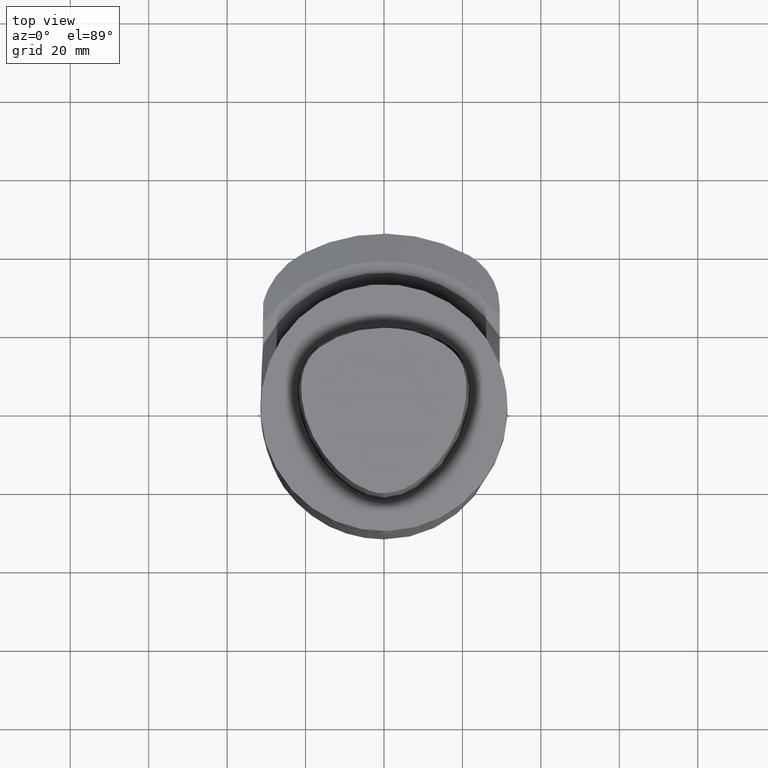
[diagram: clean part render]
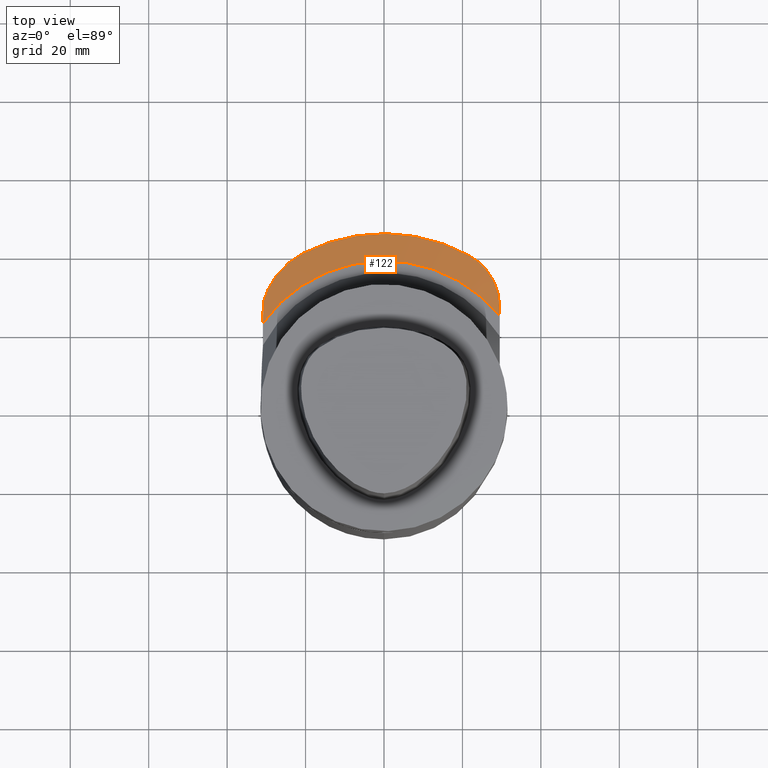
[diagram: same view with one face highlighted and labeled with its STEP entity id]
A machine part, top view. The second image highlights one B-rep face of the part: STEP entity #122.
In plain terms, the highlighted conical surface has half-angle 70 deg.
Its self-contained STEP definition (entity closure, byte-faithful):
#122=ADVANCED_FACE('240[2]',(#341),#342,.T.);
#133=EDGE_CURVE('240[2]',#357,#324,#358,.T.);
#148=EDGE_CURVE('240[2]',#382,#324,#383,.T.);
#175=EDGE_CURVE('240[2]',#357,#424,#425,.T.);
#208=EDGE_CURVE('240[2]',#400,#382,#470,.T.);
#247=EDGE_CURVE('240[2]',#424,#515,#516,.T.);
#249=EDGE_CURVE('240[2]',#515,#400,#518,.T.);
#324=VERTEX_POINT('',#593);
#341=FACE_OUTER_BOUND('',#616,.T.);
#342=CONICAL_SURFACE('',#617,41.5000000000006,1.22173047639604);
#357=VERTEX_POINT('',#678);
#358=CIRCLE('',#679,38.0000000000013);
#382=VERTEX_POINT('',#733);
#383=(B_SPLINE_CURVE(2,(#735,#736,#737),.UNSPECIFIED.,.F.,.F.)B_SPLINE_CURVE_WITH_KNOTS((3,3),(5.34196374309043,11.0515738639116),.UNSPECIFIED.)RATIONAL_B_SPLINE_CURVE((1.00408316679525,1.00422367331628,1.0))BOUNDED_CURVE()REPRESENTATION_ITEM('')GEOMETRIC_REPRESENTATION_ITEM()CURVE());
#400=VERTEX_POINT('',#775);
#424=VERTEX_POINT('',#826);
#425=(B_SPLINE_CURVE(2,(#828,#829,#830),.UNSPECIFIED.,.F.,.F.)B_SPLINE_CURVE_WITH_KNOTS((3,3),(4.13436065267856E-012,2.53867444493249),.UNSPECIFIED.)RATIONAL_B_SPLINE_CURVE((1.0,1.00181066964356,1.00273289031747))BOUNDED_CURVE()REPRESENTATION_ITEM('')GEOMETRIC_REPRESENTATION_ITEM()CURVE());
#470=B_SPLINE_CURVE_WITH_KNOTS('',3,(#896,#897,#898,#899,#900,#901,#902,#903,#904,#905,#906,#907),.UNSPECIFIED.,.F.,.F.,(4,2,2,2,2,4),(26.0613710437939,29.2757826006957,32.4901941575978,35.7046057145,38.9190172714021,41.9268817825029),.UNSPECIFIED.);
#515=VERTEX_POINT('',#1075);
#516=B_SPLINE_CURVE_WITH_KNOTS('',3,(#1076,#1077,#1078,#1079,#1080,#1081,#1082,#1083,#1084,#1085,#1086,#1087,#1088,#1089),.UNSPECIFIED.,.F.,.F.,(4,2,2,2,2,2,4),(5.54388654091908,8.03234008559579,10.7097867807944,13.2816837469945,15.8535807131947,18.4254776793948,20.9973746455949),.UNSPECIFIED.);
#518=CIRCLE('',#1092,45.0);
#593=CARTESIAN_POINT('',(-30.8706586925083,22.158574680939,-32.999999822605));
#616=EDGE_LOOP('',(#1287,#1288,#1289,#1290,#1291,#1292));
#617=AXIS2_PLACEMENT_3D('',#1293,#1294,#1295);
#678=CARTESIAN_POINT('',(29.5000000000013,23.9530791340073,-32.9999998226051));
#679=AXIS2_PLACEMENT_3D('',#1305,#1306,#1307);
#733=CARTESIAN_POINT('',(-30.787337005311,27.489346166159,-34.1915554611303));
#735=CARTESIAN_POINT('',(-30.7873370054485,27.4893461661464,-34.191555461193));
#736=CARTESIAN_POINT('',(-30.8334710360313,24.7160944565151,-33.5318080867513));
#737=CARTESIAN_POINT('',(-30.8706586925083,22.1585746809376,-32.9999998226048));
#775=CARTESIAN_POINT('',(-20.6999999999998,39.9563511847615,-35.547791462468));
#826=CARTESIAN_POINT('',(29.5000000000013,26.2630919733375,-33.544803323323));
#828=CARTESIAN_POINT('',(29.5000000000013,23.9530791340067,-32.9999998226049));
#829=CARTESIAN_POINT('',(29.5000000000013,25.0857768440012,-33.2598707183227));
#830=CARTESIAN_POINT('',(29.5000000000013,26.2630919733375,-33.5448033233231));
#896=CARTESIAN_POINT('',(-20.6999999999998,39.9563511847616,-35.547791462468));
#897=CARTESIAN_POINT('',(-21.6513789408882,39.4634747460366,-35.547791462468));
#898=CARTESIAN_POINT('',(-22.5987203850581,38.8741175520502,-35.5301275911903));
#899=CARTESIAN_POINT('',(-24.4054770089876,37.5186797330893,-35.454568227082));
#900=CARTESIAN_POINT('',(-25.2649187219621,36.7526340891572,-35.3966796814788));
#901=CARTESIAN_POINT('',(-26.836117557227,35.0865200751772,-35.2415198090253));
#902=CARTESIAN_POINT('',(-27.5488679145133,34.1854099776819,-35.144131832446));
#903=CARTESIAN_POINT('',(-28.7915966988923,32.310613144165,-34.9159036138022));
#904=CARTESIAN_POINT('',(-29.3215523459805,31.3369167185301,-34.7850189308527));
#905=CARTESIAN_POINT('',(-30.1613457884998,29.4603339052878,-34.5110816434335));
#906=CARTESIAN_POINT('',(-30.5118238686532,28.4928298941331,-34.3600526956633));
#907=CARTESIAN_POINT('',(-30.7873092716686,27.489339158661,-34.1915518513303));
#1075=CARTESIAN_POINT('',(21.7500000000016,39.3946379600059,-35.5477914624681));
#1076=CARTESIAN_POINT('',(29.4999848783967,26.2630925292595,-33.5448010171816));
#1077=CARTESIAN_POINT('',(29.4998622149794,27.1242176615674,-33.7531899039306));
#1078=CARTESIAN_POINT('',(29.4249720215732,27.9879182267472,-33.9476639962703));
#1079=CARTESIAN_POINT('',(29.1215294429549,29.7352322251896,-34.3151762195281));
#1080=CARTESIAN_POINT('',(28.8816682724365,30.6153569402988,-34.4854974710906));
#1081=CARTESIAN_POINT('',(28.285986811992,32.2347996342708,-34.7758477390772));
#1082=CARTESIAN_POINT('',(27.9141980900036,33.0350864268963,-34.907714397774));
#1083=CARTESIAN_POINT('',(27.0140175305534,34.5817447800525,-35.1380682346447));
#1084=CARTESIAN_POINT('',(26.4856523085772,35.3281249408008,-35.2366016738835));
#1085=CARTESIAN_POINT('',(25.2999243132149,36.7126048118244,-35.3938670955569));
#1086=CARTESIAN_POINT('',(24.6417065986065,37.3516887226557,-35.4527310520108));
#1087=CARTESIAN_POINT('',(23.2420160887226,38.4855444811446,-35.5296979496333));
#1088=CARTESIAN_POINT('',(22.50051073966,38.9802767821181,-35.5477914624681));
#1089=CARTESIAN_POINT('',(21.7500000000016,39.3946379600059,-35.5477914624681));
#1092=AXIS2_PLACEMENT_3D('',#1467,#1468,#1469);
#1287=ORIENTED_EDGE('',*,*,#148,.T.);
#1288=ORIENTED_EDGE('',*,*,#133,.F.);
#1289=ORIENTED_EDGE('',*,*,#175,.T.);
#1290=ORIENTED_EDGE('',*,*,#247,.T.);
#1291=ORIENTED_EDGE('',*,*,#249,.T.);
#1292=ORIENTED_EDGE('',*,*,#208,.T.);
#1293=CARTESIAN_POINT('',(-2.09867082964715E-015,-1.13686837721616E-013,-34.2738956425364));
#1294=DIRECTION('',(-6.12323399573681E-017,-3.20148320609355E-015,-1.0));
#1295=DIRECTION('',(1.22464679914735E-016,1.0,-3.20148320609355E-015));
#1305=CARTESIAN_POINT('',(-2.02066720773084E-015,-1.13686837721616E-013,-32.999999822605));
#1306=DIRECTION('',(6.12323399573681E-017,3.20148320609355E-015,1.0));
#1307=DIRECTION('',(1.22464679914735E-016,1.0,-3.20148320609355E-015));
#1467=CARTESIAN_POINT('',(-2.17667445156347E-015,-1.13686837721616E-013,-35.5477914624679));
#1468=DIRECTION('',(6.12323399573681E-017,3.20148320609355E-015,1.0));
#1469=DIRECTION('',(1.22464679914735E-016,1.0,-3.20148320609355E-015));